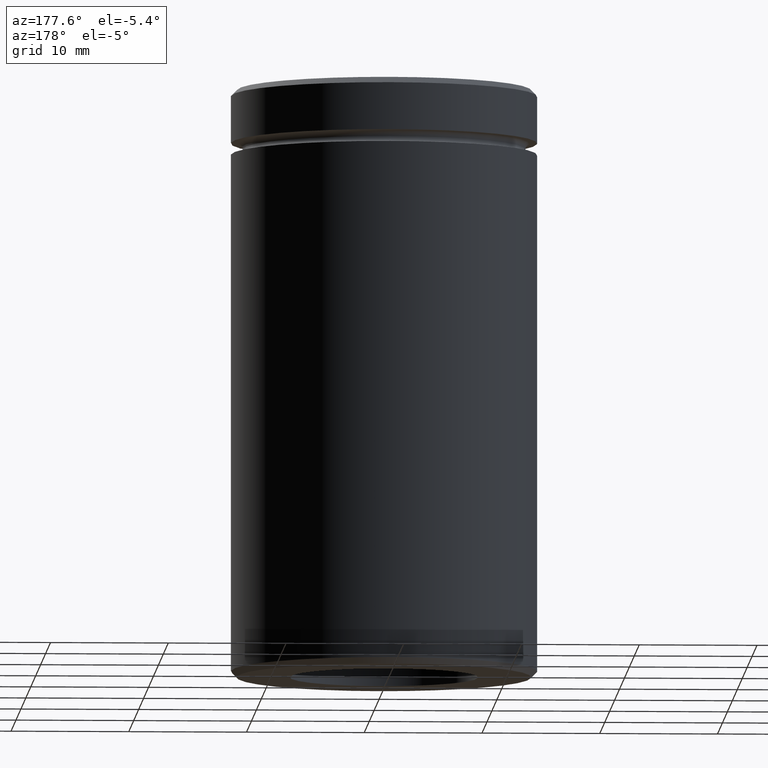
[diagram: clean part render]
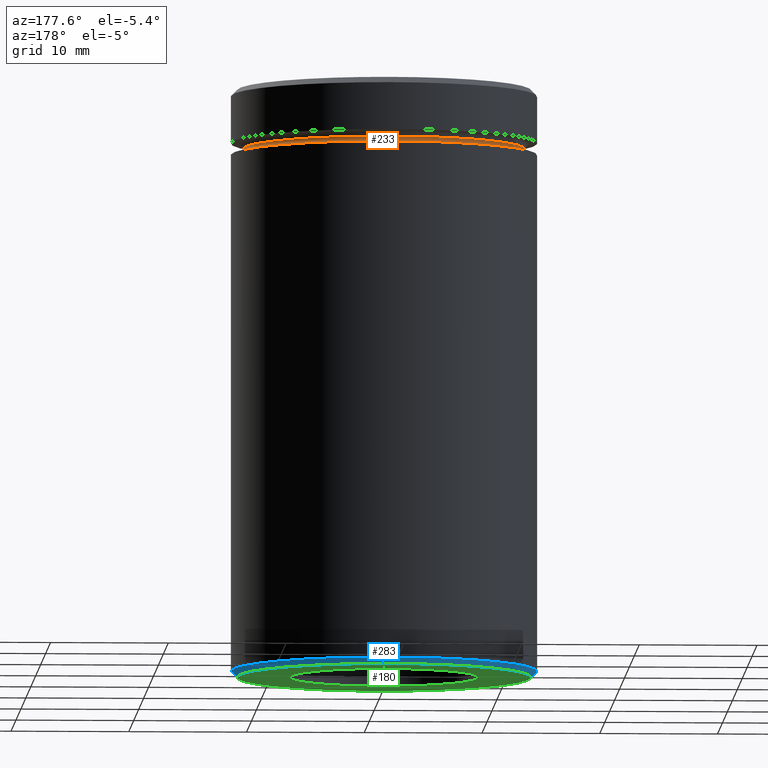
[diagram: same view with three faces highlighted in distinct colors, each labeled with its STEP entity id]
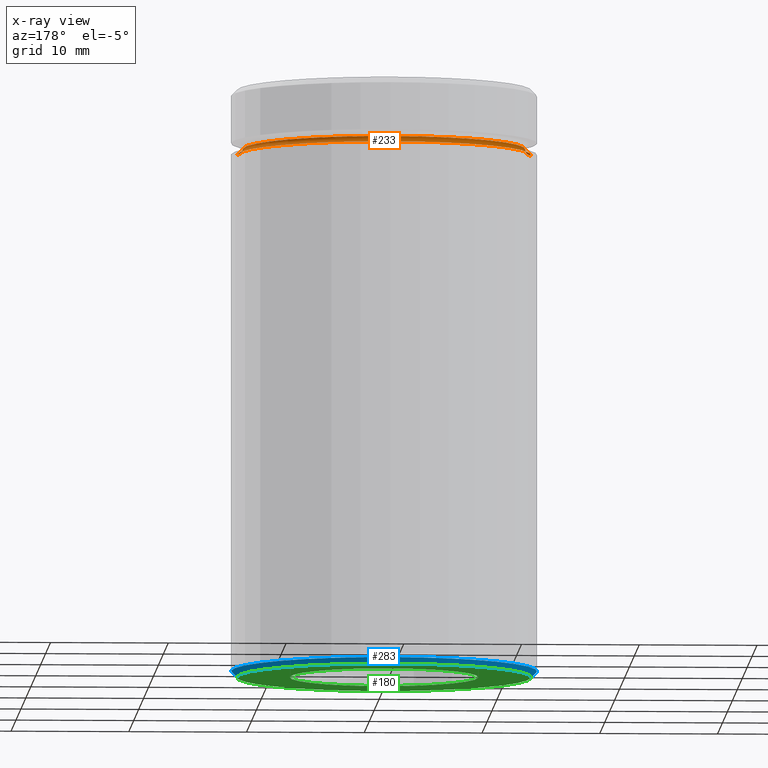
[diagram: x-ray of the same camera — body ghosted, the three highlighted faces saturated]
A machine part, auxiliary view with three faces highlighted in distinct colors.
The next image is the same camera in x-ray (body ghosted, the three faces saturated) — at least one of them is partly hidden behind the body in this view.
Their STEP definitions:

[orange] entity #233 — the highlighted toroidal blend (fillet) surface has major radius 12.5 mm and minor (blend) radius 0.5 mm.
#10 = VERTEX_POINT ( 'NONE', #114 ) ;
#13 = ORIENTED_EDGE ( 'NONE', *, *, #459, .F. ) ;
#33 = CARTESIAN_POINT ( 'NONE',  ( 0.000000000000000000, 0.000000000000000000, -5.500000000000000000 ) ) ;
#39 = CIRCLE ( 'NONE', #397, 0.5000000000000004441 ) ;
#46 = CARTESIAN_POINT ( 'NONE',  ( -12.50000000000000000, 1.530808498934191521E-15, -4.999999999999999112 ) ) ;
#47 = DIRECTION ( 'NONE',  ( 0.000000000000000000, 0.000000000000000000, -1.000000000000000000 ) ) ;
#67 = CARTESIAN_POINT ( 'NONE',  ( 0.000000000000000000, 0.000000000000000000, -4.999999999999999112 ) ) ;
#75 = ORIENTED_EDGE ( 'NONE', *, *, #368, .F. ) ;
#77 = EDGE_CURVE ( 'NONE', #10, #423, #334, .T. ) ;
#112 = CARTESIAN_POINT ( 'NONE',  ( -12.00000000000000000, 1.500192328955507734E-15, -4.999999999999999112 ) ) ;
#114 = CARTESIAN_POINT ( 'NONE',  ( -12.50000000000000000, 1.530808498934191521E-15, -5.500000000000000000 ) ) ;
#127 = CARTESIAN_POINT ( 'NONE',  ( 12.00000000000000000, 0.000000000000000000, -4.999999999999999112 ) ) ;
#130 = EDGE_CURVE ( 'NONE', #327, #423, #396, .T. ) ;
#152 = ORIENTED_EDGE ( 'NONE', *, *, #77, .F. ) ;
#153 = DIRECTION ( 'NONE',  ( 1.000000000000000000, 0.000000000000000000, 0.000000000000000000 ) ) ;
#192 = TOROIDAL_SURFACE ( 'NONE', #316, 12.50000000000000000, 0.5000000000000000000 ) ;
#224 = DIRECTION ( 'NONE',  ( 1.224646799147353207E-16, 1.000000000000000000, 0.000000000000000000 ) ) ;
#228 = AXIS2_PLACEMENT_3D ( 'NONE', #470, #262, #47 ) ;
#233 = ADVANCED_FACE ( 'NONE', ( #456 ), #192, .F. ) ;
#256 = DIRECTION ( 'NONE',  ( 0.000000000000000000, 0.000000000000000000, -1.000000000000000000 ) ) ;
#262 = DIRECTION ( 'NONE',  ( 0.000000000000000000, -1.000000000000000000, 0.000000000000000000 ) ) ;
#270 = EDGE_LOOP ( 'NONE', ( #13, #75, #433, #152 ) ) ;
#295 = DIRECTION ( 'NONE',  ( 1.000000000000000000, 0.000000000000000000, 0.000000000000000000 ) ) ;
#316 = AXIS2_PLACEMENT_3D ( 'NONE', #367, #565, #326 ) ;
#323 = AXIS2_PLACEMENT_3D ( 'NONE', #67, #395, #153 ) ;
#326 = DIRECTION ( 'NONE',  ( 1.000000000000000000, 0.000000000000000000, 0.000000000000000000 ) ) ;
#327 = VERTEX_POINT ( 'NONE', #127 ) ;
#334 = CIRCLE ( 'NONE', #457, 12.50000000000000000 ) ;
#367 = CARTESIAN_POINT ( 'NONE',  ( 0.000000000000000000, 0.000000000000000000, -4.999999999999999112 ) ) ;
#368 = EDGE_CURVE ( 'NONE', #327, #458, #387, .T. ) ;
#382 = DIRECTION ( 'NONE',  ( -1.000000000000000000, 1.224646799147353454E-16, 0.000000000000000000 ) ) ;
#387 = CIRCLE ( 'NONE', #323, 12.00000000000000000 ) ;
#395 = DIRECTION ( 'NONE',  ( -0.000000000000000000, -0.000000000000000000, 1.000000000000000000 ) ) ;
#396 = CIRCLE ( 'NONE', #228, 0.5000000000000004441 ) ;
#397 = AXIS2_PLACEMENT_3D ( 'NONE', #46, #224, #382 ) ;
#423 = VERTEX_POINT ( 'NONE', #435 ) ;
#433 = ORIENTED_EDGE ( 'NONE', *, *, #130, .T. ) ;
#435 = CARTESIAN_POINT ( 'NONE',  ( 12.50000000000000000, 0.000000000000000000, -5.500000000000000000 ) ) ;
#456 = FACE_OUTER_BOUND ( 'NONE', #270, .T. ) ;
#457 = AXIS2_PLACEMENT_3D ( 'NONE', #33, #256, #295 ) ;
#458 = VERTEX_POINT ( 'NONE', #112 ) ;
#459 = EDGE_CURVE ( 'NONE', #458, #10, #39, .T. ) ;
#470 = CARTESIAN_POINT ( 'NONE',  ( 12.50000000000000000, 0.000000000000000000, -4.999999999999999112 ) ) ;
#565 = DIRECTION ( 'NONE',  ( -0.000000000000000000, -0.000000000000000000, 1.000000000000000000 ) ) ;

[blue] entity #283 — the highlighted conical surface has half-angle 45 deg.
#2 = EDGE_CURVE ( 'NONE', #296, #242, #553, .T. ) ;
#5 = DIRECTION ( 'NONE',  ( 1.000000000000000000, 0.000000000000000000, 0.000000000000000000 ) ) ;
#11 = CARTESIAN_POINT ( 'NONE',  ( 0.000000000000000000, 0.000000000000000000, -50.00000000000000000 ) ) ;
#15 = CARTESIAN_POINT ( 'NONE',  ( 0.000000000000000000, 0.000000000000000000, -49.50000000000001421 ) ) ;
#18 = ORIENTED_EDGE ( 'NONE', *, *, #2, .F. ) ;
#24 = CARTESIAN_POINT ( 'NONE',  ( 13.00000000000000000, 0.000000000000000000, -49.50000000000001421 ) ) ;
#27 = VECTOR ( 'NONE', #81, 1000.000000000000000 ) ;
#49 = CARTESIAN_POINT ( 'NONE',  ( 0.000000000000000000, 0.000000000000000000, -49.50000000000001421 ) ) ;
#54 = EDGE_CURVE ( 'NONE', #105, #394, #460, .T. ) ;
#63 = AXIS2_PLACEMENT_3D ( 'NONE', #15, #156, #350 ) ;
#81 = DIRECTION ( 'NONE',  ( -0.7071067811865487940, 8.659560562354948882E-17, 0.7071067811865463515 ) ) ;
#105 = VERTEX_POINT ( 'NONE', #518 ) ;
#151 = DIRECTION ( 'NONE',  ( -1.000000000000000000, 0.000000000000000000, 0.000000000000000000 ) ) ;
#156 = DIRECTION ( 'NONE',  ( -0.000000000000000000, -0.000000000000000000, 1.000000000000000000 ) ) ;
#177 = CONICAL_SURFACE ( 'NONE', #479, 13.00000000000000000, 0.7853981633974500554 ) ;
#199 = DIRECTION ( 'NONE',  ( 0.000000000000000000, 0.000000000000000000, -1.000000000000000000 ) ) ;
#226 = FACE_OUTER_BOUND ( 'NONE', #302, .T. ) ;
#231 = CARTESIAN_POINT ( 'NONE',  ( -13.00000000000000000, 1.592040838891559095E-15, -49.50000000000001421 ) ) ;
#235 = CIRCLE ( 'NONE', #557, 12.50000000000001066 ) ;
#242 = VERTEX_POINT ( 'NONE', #255 ) ;
#255 = CARTESIAN_POINT ( 'NONE',  ( 13.00000000000000000, 0.000000000000000000, -49.50000000000001421 ) ) ;
#258 = CARTESIAN_POINT ( 'NONE',  ( -13.00000000000000000, 1.592040838891559095E-15, -49.50000000000001421 ) ) ;
#267 = ORIENTED_EDGE ( 'NONE', *, *, #485, .F. ) ;
#283 = ADVANCED_FACE ( 'NONE', ( #226 ), #177, .T. ) ;
#296 = VERTEX_POINT ( 'NONE', #534 ) ;
#302 = EDGE_LOOP ( 'NONE', ( #407, #481, #267, #18 ) ) ;
#350 = DIRECTION ( 'NONE',  ( -1.000000000000000000, 0.000000000000000000, 0.000000000000000000 ) ) ;
#394 = VERTEX_POINT ( 'NONE', #231 ) ;
#401 = DIRECTION ( 'NONE',  ( 0.7071067811865487940, 0.000000000000000000, 0.7071067811865463515 ) ) ;
#404 = EDGE_CURVE ( 'NONE', #105, #296, #235, .T. ) ;
#407 = ORIENTED_EDGE ( 'NONE', *, *, #404, .F. ) ;
#431 = CIRCLE ( 'NONE', #63, 13.00000000000000000 ) ;
#460 = LINE ( 'NONE', #258, #27 ) ;
#474 = VECTOR ( 'NONE', #401, 1000.000000000000000 ) ;
#476 = DIRECTION ( 'NONE',  ( -0.000000000000000000, -0.000000000000000000, 1.000000000000000000 ) ) ;
#479 = AXIS2_PLACEMENT_3D ( 'NONE', #49, #476, #5 ) ;
#481 = ORIENTED_EDGE ( 'NONE', *, *, #54, .T. ) ;
#485 = EDGE_CURVE ( 'NONE', #242, #394, #431, .T. ) ;
#518 = CARTESIAN_POINT ( 'NONE',  ( -12.50000000000001066, 1.561424668912876097E-15, -50.00000000000000000 ) ) ;
#534 = CARTESIAN_POINT ( 'NONE',  ( 12.50000000000001066, 0.000000000000000000, -50.00000000000000000 ) ) ;
#553 = LINE ( 'NONE', #24, #474 ) ;
#557 = AXIS2_PLACEMENT_3D ( 'NONE', #11, #199, #151 ) ;

[green] entity #180 — the highlighted planar face has unit normal (0, 0, -1).
#11 = CARTESIAN_POINT ( 'NONE',  ( 0.000000000000000000, 0.000000000000000000, -50.00000000000000000 ) ) ;
#31 = AXIS2_PLACEMENT_3D ( 'NONE', #467, #336, #41 ) ;
#34 = EDGE_CURVE ( 'NONE', #296, #105, #122, .T. ) ;
#41 = DIRECTION ( 'NONE',  ( -1.000000000000000000, 0.000000000000000000, 0.000000000000000000 ) ) ;
#105 = VERTEX_POINT ( 'NONE', #518 ) ;
#107 = EDGE_CURVE ( 'NONE', #167, #455, #265, .T. ) ;
#115 = DIRECTION ( 'NONE',  ( 0.000000000000000000, 0.000000000000000000, -1.000000000000000000 ) ) ;
#118 = DIRECTION ( 'NONE',  ( 0.000000000000000000, 0.000000000000000000, -1.000000000000000000 ) ) ;
#122 = CIRCLE ( 'NONE', #427, 12.50000000000001066 ) ;
#151 = DIRECTION ( 'NONE',  ( -1.000000000000000000, 0.000000000000000000, 0.000000000000000000 ) ) ;
#165 = CARTESIAN_POINT ( 'NONE',  ( -8.000000000000000000, 0.000000000000000000, -50.00000000000000000 ) ) ;
#166 = FACE_OUTER_BOUND ( 'NONE', #318, .T. ) ;
#167 = VERTEX_POINT ( 'NONE', #185 ) ;
#180 = ADVANCED_FACE ( 'NONE', ( #166, #454 ), #373, .T. ) ;
#185 = CARTESIAN_POINT ( 'NONE',  ( 8.000000000000000000, 9.797174393178825657E-16, -50.00000000000000000 ) ) ;
#197 = ORIENTED_EDGE ( 'NONE', *, *, #107, .F. ) ;
#199 = DIRECTION ( 'NONE',  ( 0.000000000000000000, 0.000000000000000000, -1.000000000000000000 ) ) ;
#235 = CIRCLE ( 'NONE', #557, 12.50000000000001066 ) ;
#265 = CIRCLE ( 'NONE', #31, 8.000000000000000000 ) ;
#285 = CARTESIAN_POINT ( 'NONE',  ( 0.000000000000000000, 0.000000000000000000, -50.00000000000000000 ) ) ;
#286 = AXIS2_PLACEMENT_3D ( 'NONE', #411, #115, #324 ) ;
#296 = VERTEX_POINT ( 'NONE', #534 ) ;
#318 = EDGE_LOOP ( 'NONE', ( #450, #445 ) ) ;
#324 = DIRECTION ( 'NONE',  ( -1.000000000000000000, 0.000000000000000000, -0.000000000000000000 ) ) ;
#336 = DIRECTION ( 'NONE',  ( 0.000000000000000000, 0.000000000000000000, -1.000000000000000000 ) ) ;
#356 = EDGE_CURVE ( 'NONE', #455, #167, #453, .T. ) ;
#369 = DIRECTION ( 'NONE',  ( 0.000000000000000000, 0.000000000000000000, -1.000000000000000000 ) ) ;
#371 = EDGE_LOOP ( 'NONE', ( #399, #197 ) ) ;
#373 = PLANE ( 'NONE',  #286 ) ;
#374 = AXIS2_PLACEMENT_3D ( 'NONE', #499, #118, #408 ) ;
#399 = ORIENTED_EDGE ( 'NONE', *, *, #356, .F. ) ;
#404 = EDGE_CURVE ( 'NONE', #105, #296, #235, .T. ) ;
#408 = DIRECTION ( 'NONE',  ( -1.000000000000000000, 0.000000000000000000, 0.000000000000000000 ) ) ;
#411 = CARTESIAN_POINT ( 'NONE',  ( 0.000000000000000000, 13.00000000000000000, -50.00000000000000000 ) ) ;
#422 = DIRECTION ( 'NONE',  ( -1.000000000000000000, 0.000000000000000000, 0.000000000000000000 ) ) ;
#427 = AXIS2_PLACEMENT_3D ( 'NONE', #285, #369, #422 ) ;
#445 = ORIENTED_EDGE ( 'NONE', *, *, #404, .T. ) ;
#450 = ORIENTED_EDGE ( 'NONE', *, *, #34, .T. ) ;
#453 = CIRCLE ( 'NONE', #374, 8.000000000000000000 ) ;
#454 = FACE_BOUND ( 'NONE', #371, .T. ) ;
#455 = VERTEX_POINT ( 'NONE', #165 ) ;
#467 = CARTESIAN_POINT ( 'NONE',  ( 0.000000000000000000, 0.000000000000000000, -50.00000000000000000 ) ) ;
#499 = CARTESIAN_POINT ( 'NONE',  ( 0.000000000000000000, 0.000000000000000000, -50.00000000000000000 ) ) ;
#518 = CARTESIAN_POINT ( 'NONE',  ( -12.50000000000001066, 1.561424668912876097E-15, -50.00000000000000000 ) ) ;
#534 = CARTESIAN_POINT ( 'NONE',  ( 12.50000000000001066, 0.000000000000000000, -50.00000000000000000 ) ) ;
#557 = AXIS2_PLACEMENT_3D ( 'NONE', #11, #199, #151 ) ;